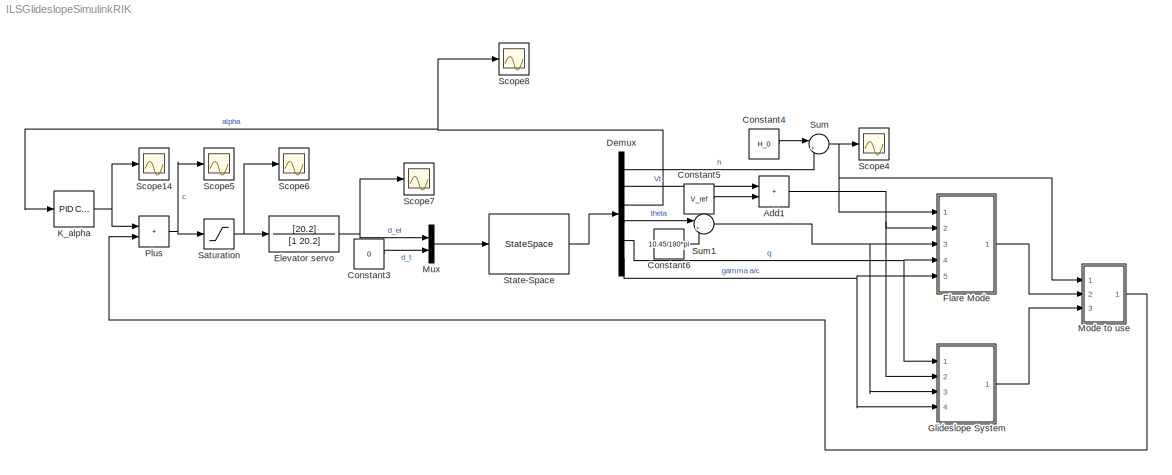
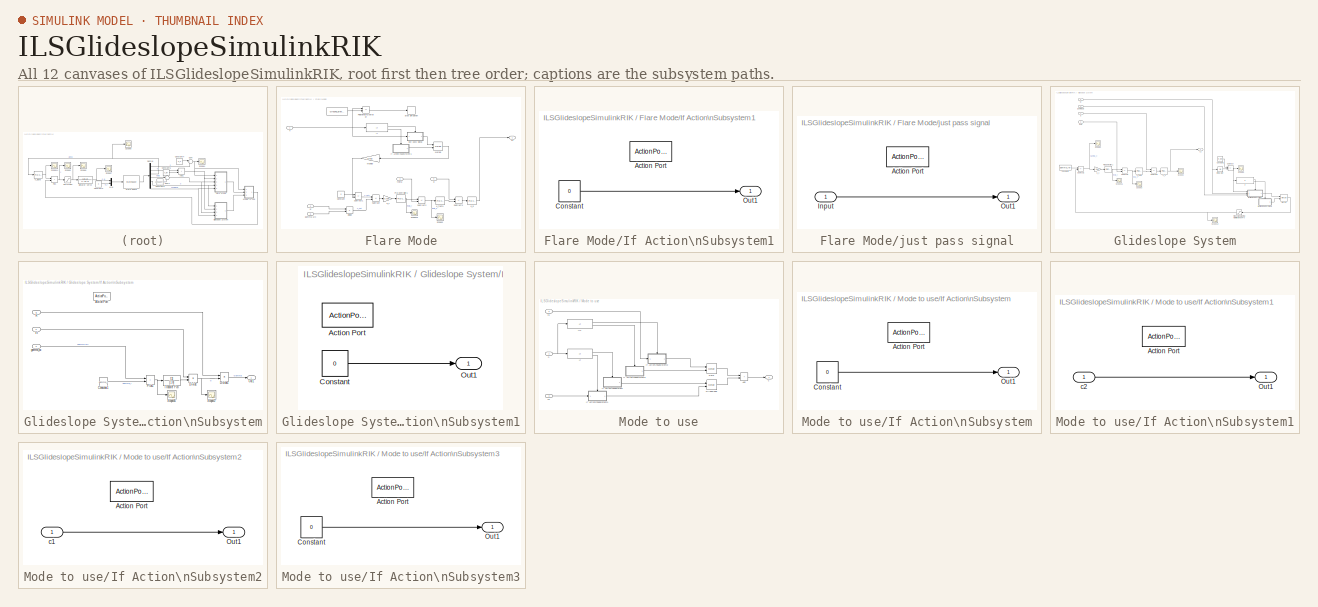
[diagram: thumbnail index - all 12 canvases of the model, root first then tree order]
MODEL ILSGlideslopeSimulinkRIK
KIND model
BLOCK [Sum] Add1
  IconShape = rectangular
  Ports = [2, 1]
  SID = 342
BLOCK [Constant] Constant3
  SID = 338
  Value = 0
BLOCK [Constant] Constant4
  SID = 340
  Value = H_0
BLOCK [Constant] Constant5
  SID = 343
  Value = V_ref
BLOCK [Constant] Constant6
  SID = 346
  Value = 10.45/180*pi
BLOCK [Demux] Demux
  Outputs = 6
  Ports = [1, 6]
  SID = 76
BLOCK [TransferFcn] Elevator servo
  Denominator = [1 20.2]
  Numerator = [20.2]
  SID = 300
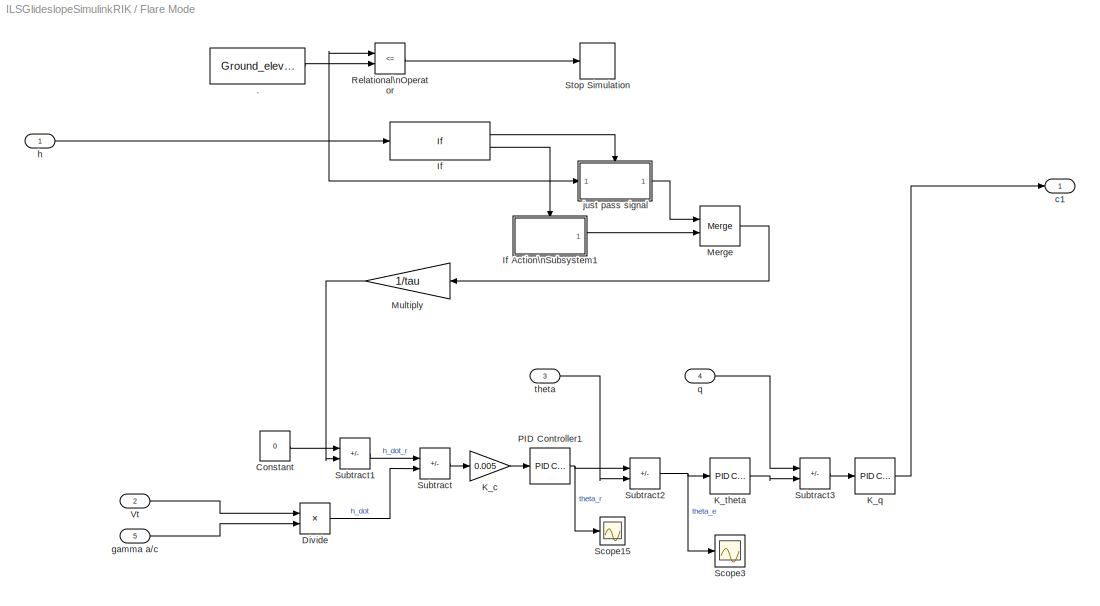
BLOCK [SubSystem] Flare Mode
  Ports = [5, 1]
  RequestExecContextInheritance = off
  SID = 431
BLOCK [Constant] Flare Mode/.
  SID = 439
  Value = Ground_elevation
BLOCK [Constant] Flare Mode/Constant
  SID = 417
  Value = 0
BLOCK [Product] Flare Mode/Divide
  Inputs = **
  Ports = [2, 1]
  SID = 418
BLOCK [If] Flare Mode/If
  IfExpression = u1 <= H_flare
  Ports = [1, 2]
  SID = 405
BLOCK [SubSystem] Flare Mode/If Action\nSubsystem1
  Ports = [0, 1, 0, 0, 0, 0, 0, 1]
  RequestExecContextInheritance = off
  SID = 410
  TreatAsAtomicUnit = on
BLOCK [ActionPort] Flare Mode/If Action\nSubsystem1/Action Port
  ActionPortLabel = else
  SID = 412
BLOCK [Constant] Flare Mode/If Action\nSubsystem1/Constant
  SID = 415
  Value = 0
BLOCK [Outport] Flare Mode/If Action\nSubsystem1/Out1
  SID = 413
BLOCK [Gain] Flare Mode/K_c
  Gain = 0.005
  SID = 419
BLOCK [Reference] Flare Mode/K_q  REF=pid_lib/PID Controller
  AWVariant = Disabled
  AntiWindupMode = none
  Controller = P
  ControllerParametersSource = internal
  D = 0
  DGainOutDataTypeStr = Inherit: Inherit via internal rule
  DOutMax = []
  DOutMin = []
  DParamDataTypeStr = Inherit: Inherit via internal rule
  DParamMax = []
  DParamMin = []
  DProdOutDataTypeStr = Inherit: Inherit via internal rule
  DVariant = Disabled
  DerivativeFilterVariant = Disabled
  DifferentiatorICPrevScaledInput = 0
  DifferentiatorOutDataTypeStr = Inherit: Inherit via internal rule
  DifferentiatorOutMax = []
  DifferentiatorOutMin = []
  DivideOutDataTypeStr = Inherit: Inherit via internal rule
  DivideOutMax = []
  DivideOutMin = []
  ExternalReset = none
  ExternalResetVariant = Disabled
  ExternalSaturationOutDataTypeStr = Inherit: Same as second input
  FdbkBlocksVariant = Forward
  FilterContinuousStateAttributes = ''
  FilterDiffDenAccumDataTypeStr = Inherit: Inherit via internal rule
  FilterDiffDenProductOutputDataTypeStr = Inherit: Inherit via internal rule
  FilterDiffNumAccumDataTypeStr = Inherit: Inherit via internal rule
  FilterDiffNumProductOutputDataTypeStr = Inherit: Inherit via internal rule
  FilterDiffOutCoefDataTypeStr = Inherit: Inherit via internal rule
  FilterDiffOutCoefMax = []
  FilterDiffOutCoefMin = []
  FilterICVariant = Disabled
  FilterMethod = Forward Euler
  FilterOutDataTypeStr = Inherit: Inherit via internal rule
  FilterOutMax = []
  FilterOutMin = []
  FilterRTWStateStorageClass = Auto
  FilterStateMustResolveToSignalObject = off
  Form = Parallel
  I = 1
  IGainOutDataTypeStr = Inherit: Inherit via internal rule
  IOutMax = []
  IOutMin = []
  IParamDataTypeStr = Inherit: Inherit via internal rule
  IParamMax = []
  IParamMin = []
  IProdOutDataTypeStr = Inherit: Inherit via internal rule
  IVariant = Disabled
  IdealPFdbkVariant = Disabled
  IdealPVariant = Disabled
  IgnoreLimit = off
  InitialConditionForFilter = 0
  InitialConditionForIntegrator = 0
  InitialConditionSetting = Auto
  InitialConditionSource = internal
  IntegratorContinuousStateAttributes = ''
  IntegratorICVariant = Disabled
  IntegratorMethod = Forward Euler
  IntegratorOutDataTypeStr = Inherit: Inherit via internal rule
  IntegratorOutMax = []
  IntegratorOutMin = []
  IntegratorRTWStateStorageClass = Auto
  IntegratorStateMustResolveToSignalObject = off
  IntegratorVariant = Disabled
  Kb = 1
  KbOutDataTypeStr = Inherit: Inherit via internal rule
  KbOutMax = []
  KbOutMin = []
  KbParamDataTypeStr = Inherit: Inherit via internal rule
  KbParamMax = []
  KbParamMin = []
  Kt = 1
  KtOutDataTypeStr = Inherit: Inherit via internal rule
  KtOutMax = []
  KtOutMin = []
  KtParamDataTypeStr = Inherit: Inherit via internal rule
  KtParamMax = []
  KtParamMin = []
  LimitOutput = off
  LinearizeAsGain = on
  LockScale = off
  LowerSaturationLimit = -inf
  N = 100
  NCopyVariant = Disabled_SignalSpec
  NGainOutDataTypeStr = Inherit: Inherit via internal rule
  NOutMax = []
  NOutMin = []
  NParamDataTypeStr = Inherit: Inherit via internal rule
  NParamMax = []
  NParamMin = []
  NProdOutDataTypeStr = Inherit: Inherit via internal rule
  NTsProdOutDataTypeStr = Inherit: Inherit via internal rule
  NTsProdOutMax = []
  NTsProdOutMin = []
  NVariant = Disabled
  P = 0.7
  PCopyVariant = Disabled
  PGainOutDataTypeStr = Inherit: Inherit via internal rule
  POutMax = []
  POutMin = []
  PParamDataTypeStr = Inherit: Inherit via internal rule
  PParamMax = []
  PParamMin = []
  PProdOutDataTypeStr = Inherit: Inherit via internal rule
  ParallelPVariant = InternalParameters
  Ports = [1, 1]
  RTWMemSecDataConstants = Inherit from model
  RTWMemSecDataInternal = Inherit from model
  RTWMemSecDataParameters = Inherit from model
  RTWMemSecFuncExecute = Inherit from model
  RTWMemSecFuncInitTerm = Inherit from model
  ReciprocalOutDataTypeStr = Inherit: Inherit via internal rule
  ReciprocalOutMax = []
  ReciprocalOutMin = []
  RndMeth = Floor
  SID = 420
  SampleTime = -1
  SatFdbkVariant = Disabled
  SatLimitsSource = internal
  SatVariant = Disabled
  SaturateOnIntegerOverflow = off
  SaturationOutDataTypeStr = Inherit: Same as input
  SaturationOutMax = []
  SaturationOutMin = []
  SourceBlock = pid_lib/PID Controller
  SourceProductBaseCode = SL
  SourceType = PID 1dof
  SumAccumDataTypeStr = Inherit: Inherit via internal rule
  SumDAccumDataTypeStr = Inherit: Inherit via internal rule
  SumDOutDataTypeStr = Inherit: Inherit via internal rule
  SumDOutMax = []
  SumDOutMin = []
  SumDenAccumDataTypeStr = Inherit: Inherit via internal rule
  SumDenOutDataTypeStr = Inherit: Inherit via internal rule
  SumDenOutMax = []
  SumDenOutMin = []
  SumFdbkVariant = Disabled
  SumI1AccumDataTypeStr = Inherit: Inherit via internal rule
  SumI1OutDataTypeStr = Inherit: Inherit via internal rule
  SumI1OutMax = []
  SumI1OutMin = []
  SumI2AccumDataTypeStr = Inherit: Inherit via internal rule
  SumI2OutDataTypeStr = Inherit: Inherit via internal rule
  SumI2OutMax = []
  SumI2OutMin = []
  SumI3AccumDataTypeStr = Inherit: Inherit via internal rule
  SumI3OutDataTypeStr = Inherit: Inherit via internal rule
  SumI3OutMax = []
  SumI3OutMin = []
  SumI4AccumDataTypeStr = Inherit: Inherit via internal rule
  SumI4OutDataTypeStr = Inherit: Inherit via internal rule
  SumI4OutMax = []
  SumI4OutMin = []
  SumNumAccumDataTypeStr = Inherit: Inherit via internal rule
  SumNumOutDataTypeStr = Inherit: Inherit via internal rule
  SumNumOutMax = []
  SumNumOutMin = []
  SumOutDataTypeStr = Inherit: Inherit via internal rule
  SumOutMax = []
  SumOutMin = []
  SumVariant = Passthrough_P
  TRSumVariant = Passthrough
  TRVariant = Disabled
  TimeDomain = Continuous-time
  TrackingMode = off
  TsampFilterVariant = InternalTs
  TsampIntegralVariant = Disabled_SignalSpec
  TsampNgainVariant = Passthrough
  TunerSelectOption = Transfer Function Based (PID Tuner App)
  UdiffTsProdOutDataTypeStr = Inherit: Inherit via internal rule
  UdiffTsProdOutMax = []
  UdiffTsProdOutMin = []
  UintegralTsProdOutDataTypeStr = Inherit: Inherit via internal rule
  UintegralTsProdOutMax = []
  UintegralTsProdOutMin = []
  UngainTsProdOutDataTypeStr = Inherit: Inherit via internal rule
  UngainTsProdOutMax = []
  UngainTsProdOutMin = []
  UpperSaturationLimit = inf
  UseExternalTs = off
  UseFilter = on
  ZeroCross = on
BLOCK [Reference] Flare Mode/K_theta  REF=pid_lib/PID Controller
  AWVariant = Disabled
  AntiWindupMode = none
  Controller = P
  ControllerParametersSource = internal
  D = 903.701444635621
  DGainOutDataTypeStr = Inherit: Inherit via internal rule
  DOutMax = []
  DOutMin = []
  DParamDataTypeStr = Inherit: Inherit via internal rule
  DParamMax = []
  DParamMin = []
  DProdOutDataTypeStr = Inherit: Inherit via internal rule
  DVariant = Disabled
  DerivativeFilterVariant = Disabled
  DifferentiatorICPrevScaledInput = 0
  DifferentiatorOutDataTypeStr = Inherit: Inherit via internal rule
  DifferentiatorOutMax = []
  DifferentiatorOutMin = []
  DivideOutDataTypeStr = Inherit: Inherit via internal rule
  DivideOutMax = []
  DivideOutMin = []
  ExternalReset = none
  ExternalResetVariant = Disabled
  ExternalSaturationOutDataTypeStr = Inherit: Same as second input
  FdbkBlocksVariant = Forward
  FilterContinuousStateAttributes = ''
  FilterDiffDenAccumDataTypeStr = Inherit: Inherit via internal rule
  FilterDiffDenProductOutputDataTypeStr = Inherit: Inherit via internal rule
  FilterDiffNumAccumDataTypeStr = Inherit: Inherit via internal rule
  FilterDiffNumProductOutputDataTypeStr = Inherit: Inherit via internal rule
  FilterDiffOutCoefDataTypeStr = Inherit: Inherit via internal rule
  FilterDiffOutCoefMax = []
  FilterDiffOutCoefMin = []
  FilterICVariant = Disabled
  FilterMethod = Forward Euler
  FilterOutDataTypeStr = Inherit: Inherit via internal rule
  FilterOutMax = []
  FilterOutMin = []
  FilterRTWStateStorageClass = Auto
  FilterStateMustResolveToSignalObject = off
  Form = Parallel
  I = 3.08886636709331e-07
  IGainOutDataTypeStr = Inherit: Inherit via internal rule
  IOutMax = []
  IOutMin = []
  IParamDataTypeStr = Inherit: Inherit via internal rule
  IParamMax = []
  IParamMin = []
  IProdOutDataTypeStr = Inherit: Inherit via internal rule
  IVariant = Disabled
  IdealPFdbkVariant = Disabled
  IdealPVariant = Disabled
  IgnoreLimit = off
  InitialConditionForFilter = 0
  InitialConditionForIntegrator = 0
  InitialConditionSetting = Auto
  InitialConditionSource = internal
  IntegratorContinuousStateAttributes = ''
  IntegratorICVariant = Disabled
  IntegratorMethod = Forward Euler
  IntegratorOutDataTypeStr = Inherit: Inherit via internal rule
  IntegratorOutMax = []
  IntegratorOutMin = []
  IntegratorRTWStateStorageClass = Auto
  IntegratorStateMustResolveToSignalObject = off
  IntegratorVariant = Disabled
  Kb = 1
  KbOutDataTypeStr = Inherit: Inherit via internal rule
  KbOutMax = []
  KbOutMin = []
  KbParamDataTypeStr = Inherit: Inherit via internal rule
  KbParamMax = []
  KbParamMin = []
  Kt = 1
  KtOutDataTypeStr = Inherit: Inherit via internal rule
  KtOutMax = []
  KtOutMin = []
  KtParamDataTypeStr = Inherit: Inherit via internal rule
  KtParamMax = []
  KtParamMin = []
  LimitOutput = off
  LinearizeAsGain = on
  LockScale = off
  LowerSaturationLimit = -inf
  N = 0.00268724844396213
  NCopyVariant = Disabled_SignalSpec
  NGainOutDataTypeStr = Inherit: Inherit via internal rule
  NOutMax = []
  NOutMin = []
  NParamDataTypeStr = Inherit: Inherit via internal rule
  NParamMax = []
  NParamMin = []
  NProdOutDataTypeStr = Inherit: Inherit via internal rule
  NTsProdOutDataTypeStr = Inherit: Inherit via internal rule
  NTsProdOutMax = []
  NTsProdOutMin = []
  NVariant = Disabled
  P = -0.53
  PCopyVariant = Disabled
  PGainOutDataTypeStr = Inherit: Inherit via internal rule
  POutMax = []
  POutMin = []
  PParamDataTypeStr = Inherit: Inherit via internal rule
  PParamMax = []
  PParamMin = []
  PProdOutDataTypeStr = Inherit: Inherit via internal rule
  ParallelPVariant = InternalParameters
  Ports = [1, 1]
  RTWMemSecDataConstants = Inherit from model
  RTWMemSecDataInternal = Inherit from model
  RTWMemSecDataParameters = Inherit from model
  RTWMemSecFuncExecute = Inherit from model
  RTWMemSecFuncInitTerm = Inherit from model
  ReciprocalOutDataTypeStr = Inherit: Inherit via internal rule
  ReciprocalOutMax = []
  ReciprocalOutMin = []
  RndMeth = Floor
  SID = 421
  SampleTime = -1
  SatFdbkVariant = Disabled
  SatLimitsSource = internal
  SatVariant = Disabled
  SaturateOnIntegerOverflow = off
  SaturationOutDataTypeStr = Inherit: Same as input
  SaturationOutMax = []
  SaturationOutMin = []
  SourceBlock = pid_lib/PID Controller
  SourceProductBaseCode = SL
  SourceType = PID 1dof
  SumAccumDataTypeStr = Inherit: Inherit via internal rule
  SumDAccumDataTypeStr = Inherit: Inherit via internal rule
  SumDOutDataTypeStr = Inherit: Inherit via internal rule
  SumDOutMax = []
  SumDOutMin = []
  SumDenAccumDataTypeStr = Inherit: Inherit via internal rule
  SumDenOutDataTypeStr = Inherit: Inherit via internal rule
  SumDenOutMax = []
  SumDenOutMin = []
  SumFdbkVariant = Disabled
  SumI1AccumDataTypeStr = Inherit: Inherit via internal rule
  SumI1OutDataTypeStr = Inherit: Inherit via internal rule
  SumI1OutMax = []
  SumI1OutMin = []
  SumI2AccumDataTypeStr = Inherit: Inherit via internal rule
  SumI2OutDataTypeStr = Inherit: Inherit via internal rule
  SumI2OutMax = []
  SumI2OutMin = []
  SumI3AccumDataTypeStr = Inherit: Inherit via internal rule
  SumI3OutDataTypeStr = Inherit: Inherit via internal rule
  SumI3OutMax = []
  SumI3OutMin = []
  SumI4AccumDataTypeStr = Inherit: Inherit via internal rule
  SumI4OutDataTypeStr = Inherit: Inherit via internal rule
  SumI4OutMax = []
  SumI4OutMin = []
  SumNumAccumDataTypeStr = Inherit: Inherit via internal rule
  SumNumOutDataTypeStr = Inherit: Inherit via internal rule
  SumNumOutMax = []
  SumNumOutMin = []
  SumOutDataTypeStr = Inherit: Inherit via internal rule
  SumOutMax = []
  SumOutMin = []
  SumVariant = Passthrough_P
  TRSumVariant = Passthrough
  TRVariant = Disabled
  TimeDomain = Continuous-time
  TrackingMode = off
  TsampFilterVariant = InternalTs
  TsampIntegralVariant = Disabled_SignalSpec
  TsampNgainVariant = Passthrough
  TunerSelectOption = Transfer Function Based (PID Tuner App)
  UdiffTsProdOutDataTypeStr = Inherit: Inherit via internal rule
  UdiffTsProdOutMax = []
  UdiffTsProdOutMin = []
  UintegralTsProdOutDataTypeStr = Inherit: Inherit via internal rule
  UintegralTsProdOutMax = []
  UintegralTsProdOutMin = []
  UngainTsProdOutDataTypeStr = Inherit: Inherit via internal rule
  UngainTsProdOutMax = []
  UngainTsProdOutMin = []
  UpperSaturationLimit = inf
  UseExternalTs = off
  UseFilter = on
  ZeroCross = on
BLOCK [Merge] Flare Mode/Merge
  Ports = [2, 1]
  SID = 416
BLOCK [Gain] Flare Mode/Multiply
  Gain = 1/tau
  SID = 430
BLOCK [Reference] Flare Mode/PID Controller1  REF=pid_lib/PID Controller
  AWVariant = Passthrough
  AntiWindupMode = none
  Controller = PI
  ControllerParametersSource = internal
  D = 1
  DGainOutDataTypeStr = Inherit: Inherit via internal rule
  DOutMax = []
  DOutMin = []
  DParamDataTypeStr = Inherit: Inherit via internal rule
  DParamMax = []
  DParamMin = []
  DProdOutDataTypeStr = Inherit: Inherit via internal rule
  DVariant = Disabled
  DerivativeFilterVariant = Disabled
  DifferentiatorICPrevScaledInput = 0
  DifferentiatorOutDataTypeStr = Inherit: Inherit via internal rule
  DifferentiatorOutMax = []
  DifferentiatorOutMin = []
  DivideOutDataTypeStr = Inherit: Inherit via internal rule
  DivideOutMax = []
  DivideOutMin = []
  ExternalReset = none
  ExternalResetVariant = Disabled
  ExternalSaturationOutDataTypeStr = Inherit: Same as second input
  FdbkBlocksVariant = Forward
  FilterContinuousStateAttributes = ''
  FilterDiffDenAccumDataTypeStr = Inherit: Inherit via internal rule
  FilterDiffDenProductOutputDataTypeStr = Inherit: Inherit via internal rule
  FilterDiffNumAccumDataTypeStr = Inherit: Inherit via internal rule
  FilterDiffNumProductOutputDataTypeStr = Inherit: Inherit via internal rule
  FilterDiffOutCoefDataTypeStr = Inherit: Inherit via internal rule
  FilterDiffOutCoefMax = []
  FilterDiffOutCoefMin = []
  FilterICVariant = Disabled
  FilterMethod = Forward Euler
  FilterOutDataTypeStr = Inherit: Inherit via internal rule
  FilterOutMax = []
  FilterOutMin = []
  FilterRTWStateStorageClass = Auto
  FilterStateMustResolveToSignalObject = off
  Form = Parallel
  I = w_1
  IGainOutDataTypeStr = Inherit: Inherit via internal rule
  IOutMax = []
  IOutMin = []
  IParamDataTypeStr = Inherit: Inherit via internal rule
  IParamMax = []
  IParamMin = []
  IProdOutDataTypeStr = Inherit: Inherit via internal rule
  IVariant = InternalParameters
  IdealPFdbkVariant = Disabled
  IdealPVariant = Disabled
  IgnoreLimit = off
  InitialConditionForFilter = 0
  InitialConditionForIntegrator = 0
  InitialConditionSetting = Auto
  InitialConditionSource = internal
  IntegratorContinuousStateAttributes = ''
  IntegratorICVariant = InternalICs
  IntegratorMethod = Forward Euler
  IntegratorOutDataTypeStr = Inherit: Inherit via internal rule
  IntegratorOutMax = []
  IntegratorOutMin = []
  IntegratorRTWStateStorageClass = Auto
  IntegratorStateMustResolveToSignalObject = off
  IntegratorVariant = Continuous
  Kb = 1
  KbOutDataTypeStr = Inherit: Inherit via internal rule
  KbOutMax = []
  KbOutMin = []
  KbParamDataTypeStr = Inherit: Inherit via internal rule
  KbParamMax = []
  KbParamMin = []
  Kt = 1
  KtOutDataTypeStr = Inherit: Inherit via internal rule
  KtOutMax = []
  KtOutMin = []
  KtParamDataTypeStr = Inherit: Inherit via internal rule
  KtParamMax = []
  KtParamMin = []
  LimitOutput = off
  LinearizeAsGain = on
  LockScale = off
  LowerSaturationLimit = -inf
  N = 100
  NCopyVariant = Disabled_SignalSpec
  NGainOutDataTypeStr = Inherit: Inherit via internal rule
  NOutMax = []
  NOutMin = []
  NParamDataTypeStr = Inherit: Inherit via internal rule
  NParamMax = []
  NParamMin = []
  NProdOutDataTypeStr = Inherit: Inherit via internal rule
  NTsProdOutDataTypeStr = Inherit: Inherit via internal rule
  NTsProdOutMax = []
  NTsProdOutMin = []
  NVariant = Disabled
  P = 1
  PCopyVariant = Disabled
  PGainOutDataTypeStr = Inherit: Inherit via internal rule
  POutMax = []
  POutMin = []
  PParamDataTypeStr = Inherit: Inherit via internal rule
  PParamMax = []
  PParamMin = []
  PProdOutDataTypeStr = Inherit: Inherit via internal rule
  ParallelPVariant = InternalParameters
  Ports = [1, 1]
  RTWMemSecDataConstants = Inherit from model
  RTWMemSecDataInternal = Inherit from model
  RTWMemSecDataParameters = Inherit from model
  RTWMemSecFuncExecute = Inherit from model
  RTWMemSecFuncInitTerm = Inherit from model
  ReciprocalOutDataTypeStr = Inherit: Inherit via internal rule
  ReciprocalOutMax = []
  ReciprocalOutMin = []
  RndMeth = Floor
  SID = 422
  SampleTime = -1
  SatFdbkVariant = Disabled
  SatLimitsSource = internal
  SatVariant = Disabled
  SaturateOnIntegerOverflow = off
  SaturationOutDataTypeStr = Inherit: Same as input
  SaturationOutMax = []
  SaturationOutMin = []
  SourceBlock = pid_lib/PID Controller
  SourceProductBaseCode = SL
  SourceType = PID 1dof
  SumAccumDataTypeStr = Inherit: Inherit via internal rule
  SumDAccumDataTypeStr = Inherit: Inherit via internal rule
  SumDOutDataTypeStr = Inherit: Inherit via internal rule
  SumDOutMax = []
  SumDOutMin = []
  SumDenAccumDataTypeStr = Inherit: Inherit via internal rule
  SumDenOutDataTypeStr = Inherit: Inherit via internal rule
  SumDenOutMax = []
  SumDenOutMin = []
  SumFdbkVariant = Disabled
  SumI1AccumDataTypeStr = Inherit: Inherit via internal rule
  SumI1OutDataTypeStr = Inherit: Inherit via internal rule
  SumI1OutMax = []
  SumI1OutMin = []
  SumI2AccumDataTypeStr = Inherit: Inherit via internal rule
  SumI2OutDataTypeStr = Inherit: Inherit via internal rule
  SumI2OutMax = []
  SumI2OutMin = []
  SumI3AccumDataTypeStr = Inherit: Inherit via internal rule
  SumI3OutDataTypeStr = Inherit: Inherit via internal rule
  SumI3OutMax = []
  SumI3OutMin = []
  SumI4AccumDataTypeStr = Inherit: Inherit via internal rule
  SumI4OutDataTypeStr = Inherit: Inherit via internal rule
  SumI4OutMax = []
  SumI4OutMin = []
  SumNumAccumDataTypeStr = Inherit: Inherit via internal rule
  SumNumOutDataTypeStr = Inherit: Inherit via internal rule
  SumNumOutMax = []
  SumNumOutMin = []
  SumOutDataTypeStr = Inherit: Inherit via internal rule
  SumOutMax = []
  SumOutMin = []
  SumVariant = Sum_PI
  TRSumVariant = Passthrough
  TRVariant = Disabled
  TimeDomain = Continuous-time
  TrackingMode = off
  TsampFilterVariant = InternalTs
  TsampIntegralVariant = Passthrough
  TsampNgainVariant = Passthrough
  TunerSelectOption = Transfer Function Based (PID Tuner App)
  UdiffTsProdOutDataTypeStr = Inherit: Inherit via internal rule
  UdiffTsProdOutMax = []
  UdiffTsProdOutMin = []
  UintegralTsProdOutDataTypeStr = Inherit: Inherit via internal rule
  UintegralTsProdOutMax = []
  UintegralTsProdOutMin = []
  UngainTsProdOutDataTypeStr = Inherit: Inherit via internal rule
  UngainTsProdOutMax = []
  UngainTsProdOutMin = []
  UpperSaturationLimit = inf
  UseExternalTs = off
  UseFilter = on
  ZeroCross = on
BLOCK [RelationalOperator] Flare Mode/Relational\nOperator
  InputSameDT = off
  Operator = <=
  OutDataTypeStr = boolean
  Ports = [2, 1]
  RndMeth = Simplest
  SID = 440
BLOCK [Scope] Flare Mode/Scope15
  Floating = off
  NumInputPorts = 1
  Ports = [1]
  SID = 423
  ScopeSpecificationString = Simulink.scopes.TimeScopeBlockCfg('CurrentConfiguration', extmgr.ConfigurationSet(extmgr.Configuration('Core','General UI',true),extmgr.Configuration('Core','Source UI',true),extmgr.Configuration('Sources','WiredSimulink',true,'DataLoggingVariableName','ScopeData1'),extmgr.Configuration('Visuals','Time Domain',true,'SerializedDisplays',{struct('MinYLimReal','-0.10228','MaxYLimReal','0.85007','YLab...<+1366ch>
BLOCK [Scope] Flare Mode/Scope3
  Floating = off
  NumInputPorts = 1
  Ports = [1]
  SID = 425
  ScopeSpecificationString = Simulink.scopes.TimeScopeBlockCfg('CurrentConfiguration', extmgr.ConfigurationSet(extmgr.Configuration('Core','General UI',true),extmgr.Configuration('Core','Source UI',true),extmgr.Configuration('Sources','WiredSimulink',true,'DataLoggingVariableName','ScopeData3'),extmgr.Configuration('Visuals','Time Domain',true,'SerializedDisplays',{struct('MinYLimReal','-12545529112428.87305','MaxYLimReal','7...<+1501ch>
BLOCK [Stop] Flare Mode/Stop Simulation
  SID = 441
BLOCK [Sum] Flare Mode/Subtract
  IconShape = rectangular
  Inputs = +-
  Ports = [2, 1]
  SID = 426
BLOCK [Sum] Flare Mode/Subtract1
  IconShape = rectangular
  Inputs = +-
  Ports = [2, 1]
  SID = 427
BLOCK [Sum] Flare Mode/Subtract2
  IconShape = rectangular
  Inputs = +-
  Ports = [2, 1]
  SID = 428
BLOCK [Sum] Flare Mode/Subtract3
  IconShape = rectangular
  Inputs = -+
  Ports = [2, 1]
  SID = 429
BLOCK [Inport] Flare Mode/Vt
  Port = 2
  SID = 433
BLOCK [Outport] Flare Mode/c1
  SID = 442
BLOCK [Inport] Flare Mode/gamma a//c
  Port = 5
  SID = 436
BLOCK [Inport] Flare Mode/h
  SID = 432
BLOCK [SubSystem] Flare Mode/just pass signal
  Ports = [1, 1, 0, 0, 0, 0, 0, 1]
  RequestExecContextInheritance = off
  SID = 406
  TreatAsAtomicUnit = on
BLOCK [ActionPort] Flare Mode/just pass signal/Action Port
  ActionPortLabel = if(u1 <= H_flare)
  SID = 408
BLOCK [Inport] Flare Mode/just pass signal/Input
  SID = 414
BLOCK [Outport] Flare Mode/just pass signal/Out1
  SID = 409
BLOCK [Inport] Flare Mode/q
  Port = 4
  SID = 435
BLOCK [Inport] Flare Mode/theta
  Port = 3
  SID = 434
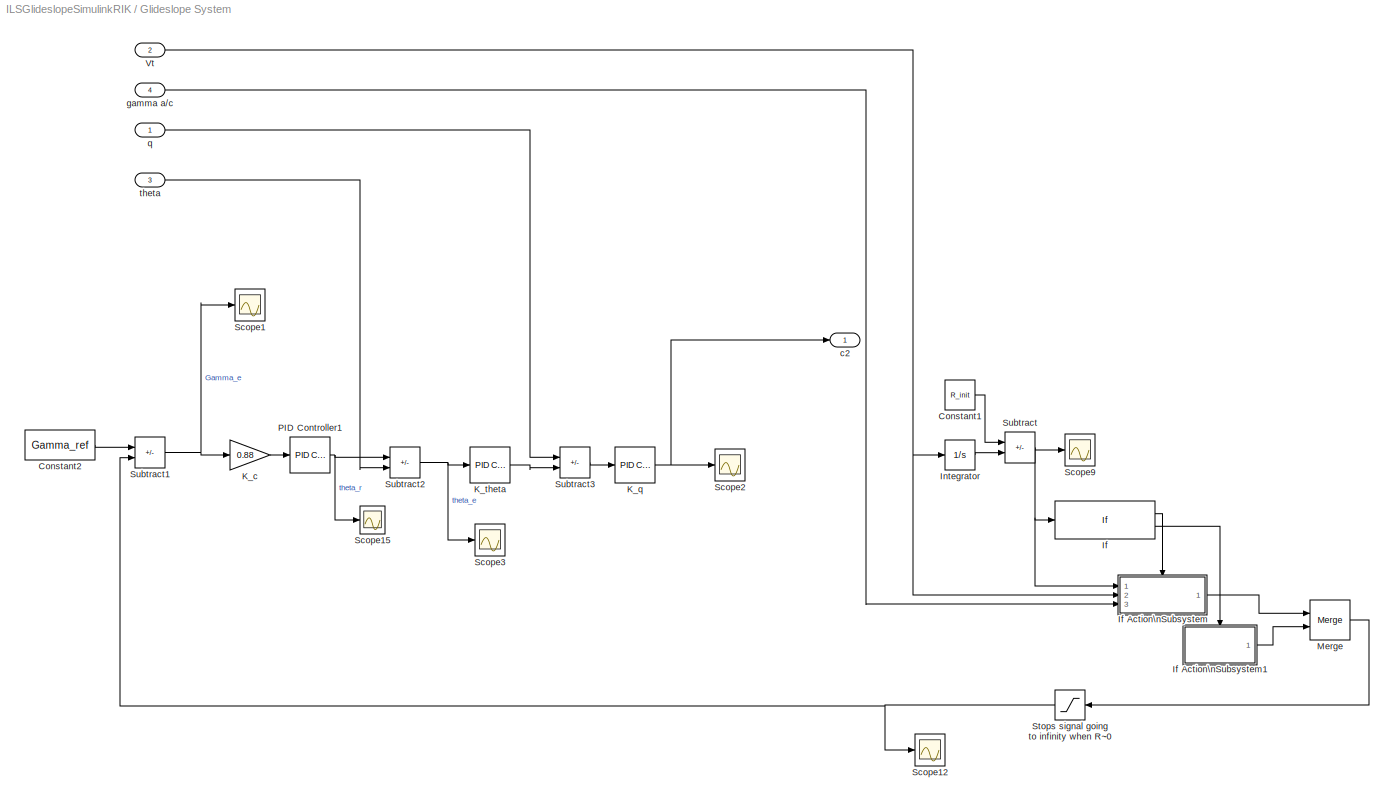
BLOCK [SubSystem] Glideslope System
  Ports = [4, 1]
  RequestExecContextInheritance = off
  SID = 399
BLOCK [Constant] Glideslope System/Constant1
  SID = 322
  Value = R_init
BLOCK [Constant] Glideslope System/Constant2
  SID = 324
  Value = Gamma_ref
BLOCK [If] Glideslope System/If
  IfExpression = u1 <= 38215
  Ports = [1, 2]
  SID = 372
BLOCK [SubSystem] Glideslope System/If Action\nSubsystem
  Ports = [3, 1, 0, 0, 0, 0, 0, 1]
  RequestExecContextInheritance = off
  SID = 373
  TreatAsAtomicUnit = on
BLOCK [ActionPort] Glideslope System/If Action\nSubsystem/Action Port
  ActionPortLabel = if(u1 <= 38215)
  SID = 375
BLOCK [Constant] Glideslope System/If Action\nSubsystem/Constant1
  SID = 386
  Value = gamma_r
BLOCK [Product] Glideslope System/If Action\nSubsystem/Divide
  Inputs = **
  Ports = [2, 1]
  SID = 387
BLOCK [Product] Glideslope System/If Action\nSubsystem/Divide1
  Inputs = /*
  Ports = [2, 1]
  SID = 388
BLOCK [Outport] Glideslope System/If Action\nSubsystem/Out1
  SID = 394
BLOCK [Sum] Glideslope System/If Action\nSubsystem/Plus1
  IconShape = rectangular
  Ports = [2, 1]
  SID = 389
BLOCK [Inport] Glideslope System/If Action\nSubsystem/R
  SID = 374
BLOCK [Scope] Glideslope System/If Action\nSubsystem/Scope16
  Floating = off
  NumInputPorts = 1
  Ports = [1]
  SID = 390
  ScopeSpecificationString = Simulink.scopes.TimeScopeBlockCfg('CurrentConfiguration', extmgr.ConfigurationSet(extmgr.Configuration('Core','General UI',true),extmgr.Configuration('Core','Source UI',true),extmgr.Configuration('Sources','WiredSimulink',true,'DataLoggingVariableName','ScopeData1'),extmgr.Configuration('Visuals','Time Domain',true,'SerializedDisplays',{struct('MinYLimReal','0.00671','MaxYLimReal','0.07098','YLabe...<+1362ch>
BLOCK [Scope] Glideslope System/If Action\nSubsystem/Scope17
  Floating = off
  NumInputPorts = 1
  Ports = [1]
  SID = 391
  ScopeSpecificationString = Simulink.scopes.TimeScopeBlockCfg('CurrentConfiguration', extmgr.ConfigurationSet(extmgr.Configuration('Core','General UI',true),extmgr.Configuration('Core','Source UI',true),extmgr.Configuration('Sources','WiredSimulink',true,'DataLoggingVariableName','ScopeData2'),extmgr.Configuration('Visuals','Time Domain',true,'SerializedDisplays',{struct('MinYLimReal','-1942.16536','MaxYLimReal','17479.48822...<+1432ch>
BLOCK [TransferFcn] Glideslope System/If Action\nSubsystem/Transfer Fcn
  Denominator = [1 0]
  SID = 392
BLOCK [Inport] Glideslope System/If Action\nSubsystem/Vt
  Port = 2
  SID = 385
BLOCK [Inport] Glideslope System/If Action\nSubsystem/gamma_ac
  Port = 3
  SID = 393
BLOCK [SubSystem] Glideslope System/If Action\nSubsystem1
  Ports = [0, 1, 0, 0, 0, 0, 0, 1]
  RequestExecContextInheritance = off
  SID = 379
  TreatAsAtomicUnit = on
BLOCK [ActionPort] Glideslope System/If Action\nSubsystem1/Action Port
  ActionPortLabel = else
  SID = 381
BLOCK [Constant] Glideslope System/If Action\nSubsystem1/Constant
  SID = 395
  Value = 0
BLOCK [Outport] Glideslope System/If Action\nSubsystem1/Out1
  SID = 383
BLOCK [Integrator] Glideslope System/Integrator
  Ports = [1, 1]
  SID = 320
BLOCK [Gain] Glideslope System/K_c
  Gain = 0.88
  SID = 370
BLOCK [Reference] Glideslope System/K_q  REF=pid_lib/PID Controller
  AWVariant = Disabled
  AntiWindupMode = none
  Controller = P
  ControllerParametersSource = internal
  D = -50
  DGainOutDataTypeStr = Inherit: Inherit via internal rule
  DOutMax = []
  DOutMin = []
  DParamDataTypeStr = Inherit: Inherit via internal rule
  DParamMax = []
  DParamMin = []
  DProdOutDataTypeStr = Inherit: Inherit via internal rule
  DVariant = Disabled
  DerivativeFilterVariant = Disabled
  DifferentiatorICPrevScaledInput = 0
  DifferentiatorOutDataTypeStr = Inherit: Inherit via internal rule
  DifferentiatorOutMax = []
  DifferentiatorOutMin = []
  DivideOutDataTypeStr = Inherit: Inherit via internal rule
  DivideOutMax = []
  DivideOutMin = []
  ExternalReset = none
  ExternalResetVariant = Disabled
  ExternalSaturationOutDataTypeStr = Inherit: Same as second input
  FdbkBlocksVariant = Forward
  FilterContinuousStateAttributes = ''
  FilterDiffDenAccumDataTypeStr = Inherit: Inherit via internal rule
  FilterDiffDenProductOutputDataTypeStr = Inherit: Inherit via internal rule
  FilterDiffNumAccumDataTypeStr = Inherit: Inherit via internal rule
  FilterDiffNumProductOutputDataTypeStr = Inherit: Inherit via internal rule
  FilterDiffOutCoefDataTypeStr = Inherit: Inherit via internal rule
  FilterDiffOutCoefMax = []
  FilterDiffOutCoefMin = []
  FilterICVariant = Disabled
  FilterMethod = Forward Euler
  FilterOutDataTypeStr = Inherit: Inherit via internal rule
  FilterOutMax = []
  FilterOutMin = []
  FilterRTWStateStorageClass = Auto
  FilterStateMustResolveToSignalObject = off
  Form = Parallel
  I = 0
  IGainOutDataTypeStr = Inherit: Inherit via internal rule
  IOutMax = []
  IOutMin = []
  IParamDataTypeStr = Inherit: Inherit via internal rule
  IParamMax = []
  IParamMin = []
  IProdOutDataTypeStr = Inherit: Inherit via internal rule
  IVariant = Disabled
  IdealPFdbkVariant = Disabled
  IdealPVariant = Disabled
  IgnoreLimit = off
  InitialConditionForFilter = 0
  InitialConditionForIntegrator = 0
  InitialConditionSetting = Auto
  InitialConditionSource = internal
  IntegratorContinuousStateAttributes = ''
  IntegratorICVariant = Disabled
  IntegratorMethod = Forward Euler
  IntegratorOutDataTypeStr = Inherit: Inherit via internal rule
  IntegratorOutMax = []
  IntegratorOutMin = []
  IntegratorRTWStateStorageClass = Auto
  IntegratorStateMustResolveToSignalObject = off
  IntegratorVariant = Disabled
  Kb = 1
  KbOutDataTypeStr = Inherit: Inherit via internal rule
  KbOutMax = []
  KbOutMin = []
  KbParamDataTypeStr = Inherit: Inherit via internal rule
  KbParamMax = []
  KbParamMin = []
  Kt = 1
  KtOutDataTypeStr = Inherit: Inherit via internal rule
  KtOutMax = []
  KtOutMin = []
  KtParamDataTypeStr = Inherit: Inherit via internal rule
  KtParamMax = []
  KtParamMin = []
  LimitOutput = off
  LinearizeAsGain = on
  LockScale = off
  LowerSaturationLimit = -inf
  N = 1
  NCopyVariant = Disabled_SignalSpec
  NGainOutDataTypeStr = Inherit: Inherit via internal rule
  NOutMax = []
  NOutMin = []
  NParamDataTypeStr = Inherit: Inherit via internal rule
  NParamMax = []
  NParamMin = []
  NProdOutDataTypeStr = Inherit: Inherit via internal rule
  NTsProdOutDataTypeStr = Inherit: Inherit via internal rule
  NTsProdOutMax = []
  NTsProdOutMin = []
  NVariant = Disabled
  P = 0.7
  PCopyVariant = Disabled
  PGainOutDataTypeStr = Inherit: Inherit via internal rule
  POutMax = []
  POutMin = []
  PParamDataTypeStr = Inherit: Inherit via internal rule
  PParamMax = []
  PParamMin = []
  PProdOutDataTypeStr = Inherit: Inherit via internal rule
  ParallelPVariant = InternalParameters
  Ports = [1, 1]
  RTWMemSecDataConstants = Inherit from model
  RTWMemSecDataInternal = Inherit from model
  RTWMemSecDataParameters = Inherit from model
  RTWMemSecFuncExecute = Inherit from model
  RTWMemSecFuncInitTerm = Inherit from model
  ReciprocalOutDataTypeStr = Inherit: Inherit via internal rule
  ReciprocalOutMax = []
  ReciprocalOutMin = []
  RndMeth = Floor
  SID = 358
  SampleTime = -1
  SatFdbkVariant = Disabled
  SatLimitsSource = internal
  SatVariant = Disabled
  SaturateOnIntegerOverflow = off
  SaturationOutDataTypeStr = Inherit: Same as input
  SaturationOutMax = []
  SaturationOutMin = []
  SourceBlock = pid_lib/PID Controller
  SourceProductBaseCode = SL
  SourceType = PID 1dof
  SumAccumDataTypeStr = Inherit: Inherit via internal rule
  SumDAccumDataTypeStr = Inherit: Inherit via internal rule
  SumDOutDataTypeStr = Inherit: Inherit via internal rule
  SumDOutMax = []
  SumDOutMin = []
  SumDenAccumDataTypeStr = Inherit: Inherit via internal rule
  SumDenOutDataTypeStr = Inherit: Inherit via internal rule
  SumDenOutMax = []
  SumDenOutMin = []
  SumFdbkVariant = Disabled
  SumI1AccumDataTypeStr = Inherit: Inherit via internal rule
  SumI1OutDataTypeStr = Inherit: Inherit via internal rule
  SumI1OutMax = []
  SumI1OutMin = []
  SumI2AccumDataTypeStr = Inherit: Inherit via internal rule
  SumI2OutDataTypeStr = Inherit: Inherit via internal rule
  SumI2OutMax = []
  SumI2OutMin = []
  SumI3AccumDataTypeStr = Inherit: Inherit via internal rule
  SumI3OutDataTypeStr = Inherit: Inherit via internal rule
  SumI3OutMax = []
  SumI3OutMin = []
  SumI4AccumDataTypeStr = Inherit: Inherit via internal rule
  SumI4OutDataTypeStr = Inherit: Inherit via internal rule
  SumI4OutMax = []
  SumI4OutMin = []
  SumNumAccumDataTypeStr = Inherit: Inherit via internal rule
  SumNumOutDataTypeStr = Inherit: Inherit via internal rule
  SumNumOutMax = []
  SumNumOutMin = []
  SumOutDataTypeStr = Inherit: Inherit via internal rule
  SumOutMax = []
  SumOutMin = []
  SumVariant = Passthrough_P
  TRSumVariant = Passthrough
  TRVariant = Disabled
  TimeDomain = Continuous-time
  TrackingMode = off
  TsampFilterVariant = InternalTs
  TsampIntegralVariant = Disabled_SignalSpec
  TsampNgainVariant = Passthrough
  TunerSelectOption = Transfer Function Based (PID Tuner App)
  UdiffTsProdOutDataTypeStr = Inherit: Inherit via internal rule
  UdiffTsProdOutMax = []
  UdiffTsProdOutMin = []
  UintegralTsProdOutDataTypeStr = Inherit: Inherit via internal rule
  UintegralTsProdOutMax = []
  UintegralTsProdOutMin = []
  UngainTsProdOutDataTypeStr = Inherit: Inherit via internal rule
  UngainTsProdOutMax = []
  UngainTsProdOutMin = []
  UpperSaturationLimit = inf
  UseExternalTs = off
  UseFilter = on
  ZeroCross = on
BLOCK [Reference] Glideslope System/K_theta  REF=pid_lib/PID Controller
  AWVariant = Disabled
  AntiWindupMode = none
  Controller = P
  ControllerParametersSource = internal
  D = 903.701444635621
  DGainOutDataTypeStr = Inherit: Inherit via internal rule
  DOutMax = []
  DOutMin = []
  DParamDataTypeStr = Inherit: Inherit via internal rule
  DParamMax = []
  DParamMin = []
  DProdOutDataTypeStr = Inherit: Inherit via internal rule
  DVariant = Disabled
  DerivativeFilterVariant = Disabled
  DifferentiatorICPrevScaledInput = 0
  DifferentiatorOutDataTypeStr = Inherit: Inherit via internal rule
  DifferentiatorOutMax = []
  DifferentiatorOutMin = []
  DivideOutDataTypeStr = Inherit: Inherit via internal rule
  DivideOutMax = []
  DivideOutMin = []
  ExternalReset = none
  ExternalResetVariant = Disabled
  ExternalSaturationOutDataTypeStr = Inherit: Same as second input
  FdbkBlocksVariant = Forward
  FilterContinuousStateAttributes = ''
  FilterDiffDenAccumDataTypeStr = Inherit: Inherit via internal rule
  FilterDiffDenProductOutputDataTypeStr = Inherit: Inherit via internal rule
  FilterDiffNumAccumDataTypeStr = Inherit: Inherit via internal rule
  FilterDiffNumProductOutputDataTypeStr = Inherit: Inherit via internal rule
  FilterDiffOutCoefDataTypeStr = Inherit: Inherit via internal rule
  FilterDiffOutCoefMax = []
  FilterDiffOutCoefMin = []
  FilterICVariant = Disabled
  FilterMethod = Forward Euler
  FilterOutDataTypeStr = Inherit: Inherit via internal rule
  FilterOutMax = []
  FilterOutMin = []
  FilterRTWStateStorageClass = Auto
  FilterStateMustResolveToSignalObject = off
  Form = Parallel
  I = 3.08886636709331e-07
  IGainOutDataTypeStr = Inherit: Inherit via internal rule
  IOutMax = []
  IOutMin = []
  IParamDataTypeStr = Inherit: Inherit via internal rule
  IParamMax = []
  IParamMin = []
  IProdOutDataTypeStr = Inherit: Inherit via internal rule
  IVariant = Disabled
  IdealPFdbkVariant = Disabled
  IdealPVariant = Disabled
  IgnoreLimit = off
  InitialConditionForFilter = 0
  InitialConditionForIntegrator = 0
  InitialConditionSetting = Auto
  InitialConditionSource = internal
  IntegratorContinuousStateAttributes = ''
  IntegratorICVariant = Disabled
  IntegratorMethod = Forward Euler
  IntegratorOutDataTypeStr = Inherit: Inherit via internal rule
  IntegratorOutMax = []
  IntegratorOutMin = []
  IntegratorRTWStateStorageClass = Auto
  IntegratorStateMustResolveToSignalObject = off
  IntegratorVariant = Disabled
  Kb = 1
  KbOutDataTypeStr = Inherit: Inherit via internal rule
  KbOutMax = []
  KbOutMin = []
  KbParamDataTypeStr = Inherit: Inherit via internal rule
  KbParamMax = []
  KbParamMin = []
  Kt = 1
  KtOutDataTypeStr = Inherit: Inherit via internal rule
  KtOutMax = []
  KtOutMin = []
  KtParamDataTypeStr = Inherit: Inherit via internal rule
  KtParamMax = []
  KtParamMin = []
  LimitOutput = off
  LinearizeAsGain = on
  LockScale = off
  LowerSaturationLimit = -inf
  N = 0.00268724844396213
  NCopyVariant = Disabled_SignalSpec
  NGainOutDataTypeStr = Inherit: Inherit via internal rule
  NOutMax = []
  NOutMin = []
  NParamDataTypeStr = Inherit: Inherit via internal rule
  NParamMax = []
  NParamMin = []
  NProdOutDataTypeStr = Inherit: Inherit via internal rule
  NTsProdOutDataTypeStr = Inherit: Inherit via internal rule
  NTsProdOutMax = []
  NTsProdOutMin = []
  NVariant = Disabled
  P = -0.53
  PCopyVariant = Disabled
  PGainOutDataTypeStr = Inherit: Inherit via internal rule
  POutMax = []
  POutMin = []
  PParamDataTypeStr = Inherit: Inherit via internal rule
  PParamMax = []
  PParamMin = []
  PProdOutDataTypeStr = Inherit: Inherit via internal rule
  ParallelPVariant = InternalParameters
  Ports = [1, 1]
  RTWMemSecDataConstants = Inherit from model
  RTWMemSecDataInternal = Inherit from model
  RTWMemSecDataParameters = Inherit from model
  RTWMemSecFuncExecute = Inherit from model
  RTWMemSecFuncInitTerm = Inherit from model
  ReciprocalOutDataTypeStr = Inherit: Inherit via internal rule
  ReciprocalOutMax = []
  ReciprocalOutMin = []
  RndMeth = Floor
  SID = 328
  SampleTime = -1
  SatFdbkVariant = Disabled
  SatLimitsSource = internal
  SatVariant = Disabled
  SaturateOnIntegerOverflow = off
  SaturationOutDataTypeStr = Inherit: Same as input
  SaturationOutMax = []
  SaturationOutMin = []
  SourceBlock = pid_lib/PID Controller
  SourceProductBaseCode = SL
  SourceType = PID 1dof
  SumAccumDataTypeStr = Inherit: Inherit via internal rule
  SumDAccumDataTypeStr = Inherit: Inherit via internal rule
  SumDOutDataTypeStr = Inherit: Inherit via internal rule
  SumDOutMax = []
  SumDOutMin = []
  SumDenAccumDataTypeStr = Inherit: Inherit via internal rule
  SumDenOutDataTypeStr = Inherit: Inherit via internal rule
  SumDenOutMax = []
  SumDenOutMin = []
  SumFdbkVariant = Disabled
  SumI1AccumDataTypeStr = Inherit: Inherit via internal rule
  SumI1OutDataTypeStr = Inherit: Inherit via internal rule
  SumI1OutMax = []
  SumI1OutMin = []
  SumI2AccumDataTypeStr = Inherit: Inherit via internal rule
  SumI2OutDataTypeStr = Inherit: Inherit via internal rule
  SumI2OutMax = []
  SumI2OutMin = []
  SumI3AccumDataTypeStr = Inherit: Inherit via internal rule
  SumI3OutDataTypeStr = Inherit: Inherit via internal rule
  SumI3OutMax = []
  SumI3OutMin = []
  SumI4AccumDataTypeStr = Inherit: Inherit via internal rule
  SumI4OutDataTypeStr = Inherit: Inherit via internal rule
  SumI4OutMax = []
  SumI4OutMin = []
  SumNumAccumDataTypeStr = Inherit: Inherit via internal rule
  SumNumOutDataTypeStr = Inherit: Inherit via internal rule
  SumNumOutMax = []
  SumNumOutMin = []
  SumOutDataTypeStr = Inherit: Inherit via internal rule
  SumOutMax = []
  SumOutMin = []
  SumVariant = Passthrough_P
  TRSumVariant = Passthrough
  TRVariant = Disabled
  TimeDomain = Continuous-time
  TrackingMode = off
  TsampFilterVariant = InternalTs
  TsampIntegralVariant = Disabled_SignalSpec
  TsampNgainVariant = Passthrough
  TunerSelectOption = Transfer Function Based (PID Tuner App)
  UdiffTsProdOutDataTypeStr = Inherit: Inherit via internal rule
  UdiffTsProdOutMax = []
  UdiffTsProdOutMin = []
  UintegralTsProdOutDataTypeStr = Inherit: Inherit via internal rule
  UintegralTsProdOutMax = []
  UintegralTsProdOutMin = []
  UngainTsProdOutDataTypeStr = Inherit: Inherit via internal rule
  UngainTsProdOutMax = []
  UngainTsProdOutMin = []
  UpperSaturationLimit = inf
  UseExternalTs = off
  UseFilter = on
  ZeroCross = on
BLOCK [Merge] Glideslope System/Merge
  Ports = [2, 1]
  SID = 384
BLOCK [Reference] Glideslope System/PID Controller1  REF=pid_lib/PID Controller
  AWVariant = Passthrough
  AntiWindupMode = none
  Controller = PI
  ControllerParametersSource = internal
  D = 1
  DGainOutDataTypeStr = Inherit: Inherit via internal rule
  DOutMax = []
  DOutMin = []
  DParamDataTypeStr = Inherit: Inherit via internal rule
  DParamMax = []
  DParamMin = []
  DProdOutDataTypeStr = Inherit: Inherit via internal rule
  DVariant = Disabled
  DerivativeFilterVariant = Disabled
  DifferentiatorICPrevScaledInput = 0
  DifferentiatorOutDataTypeStr = Inherit: Inherit via internal rule
  DifferentiatorOutMax = []
  DifferentiatorOutMin = []
  DivideOutDataTypeStr = Inherit: Inherit via internal rule
  DivideOutMax = []
  DivideOutMin = []
  ExternalReset = none
  ExternalResetVariant = Disabled
  ExternalSaturationOutDataTypeStr = Inherit: Same as second input
  FdbkBlocksVariant = Forward
  FilterContinuousStateAttributes = ''
  FilterDiffDenAccumDataTypeStr = Inherit: Inherit via internal rule
  FilterDiffDenProductOutputDataTypeStr = Inherit: Inherit via internal rule
  FilterDiffNumAccumDataTypeStr = Inherit: Inherit via internal rule
  FilterDiffNumProductOutputDataTypeStr = Inherit: Inherit via internal rule
  FilterDiffOutCoefDataTypeStr = Inherit: Inherit via internal rule
  FilterDiffOutCoefMax = []
  FilterDiffOutCoefMin = []
  FilterICVariant = Disabled
  FilterMethod = Forward Euler
  FilterOutDataTypeStr = Inherit: Inherit via internal rule
  FilterOutMax = []
  FilterOutMin = []
  FilterRTWStateStorageClass = Auto
  FilterStateMustResolveToSignalObject = off
  Form = Parallel
  I = w_1
  IGainOutDataTypeStr = Inherit: Inherit via internal rule
  IOutMax = []
  IOutMin = []
  IParamDataTypeStr = Inherit: Inherit via internal rule
  IParamMax = []
  IParamMin = []
  IProdOutDataTypeStr = Inherit: Inherit via internal rule
  IVariant = InternalParameters
  IdealPFdbkVariant = Disabled
  IdealPVariant = Disabled
  IgnoreLimit = off
  InitialConditionForFilter = 0
  InitialConditionForIntegrator = 0
  InitialConditionSetting = Auto
  InitialConditionSource = internal
  IntegratorContinuousStateAttributes = ''
  IntegratorICVariant = InternalICs
  IntegratorMethod = Forward Euler
  IntegratorOutDataTypeStr = Inherit: Inherit via internal rule
  IntegratorOutMax = []
  IntegratorOutMin = []
  IntegratorRTWStateStorageClass = Auto
  IntegratorStateMustResolveToSignalObject = off
  IntegratorVariant = Continuous
  Kb = 1
  KbOutDataTypeStr = Inherit: Inherit via internal rule
  KbOutMax = []
  KbOutMin = []
  KbParamDataTypeStr = Inherit: Inherit via internal rule
  KbParamMax = []
  KbParamMin = []
  Kt = 1
  KtOutDataTypeStr = Inherit: Inherit via internal rule
  KtOutMax = []
  KtOutMin = []
  KtParamDataTypeStr = Inherit: Inherit via internal rule
  KtParamMax = []
  KtParamMin = []
  LimitOutput = off
  LinearizeAsGain = on
  LockScale = off
  LowerSaturationLimit = -inf
  N = 100
  NCopyVariant = Disabled_SignalSpec
  NGainOutDataTypeStr = Inherit: Inherit via internal rule
  NOutMax = []
  NOutMin = []
  NParamDataTypeStr = Inherit: Inherit via internal rule
  NParamMax = []
  NParamMin = []
  NProdOutDataTypeStr = Inherit: Inherit via internal rule
  NTsProdOutDataTypeStr = Inherit: Inherit via internal rule
  NTsProdOutMax = []
  NTsProdOutMin = []
  NVariant = Disabled
  P = 1
  PCopyVariant = Disabled
  PGainOutDataTypeStr = Inherit: Inherit via internal rule
  POutMax = []
  POutMin = []
  PParamDataTypeStr = Inherit: Inherit via internal rule
  PParamMax = []
  PParamMin = []
  PProdOutDataTypeStr = Inherit: Inherit via internal rule
  ParallelPVariant = InternalParameters
  Ports = [1, 1]
  RTWMemSecDataConstants = Inherit from model
  RTWMemSecDataInternal = Inherit from model
  RTWMemSecDataParameters = Inherit from model
  RTWMemSecFuncExecute = Inherit from model
  RTWMemSecFuncInitTerm = Inherit from model
  ReciprocalOutDataTypeStr = Inherit: Inherit via internal rule
  ReciprocalOutMax = []
  ReciprocalOutMin = []
  RndMeth = Floor
  SID = 326
  SampleTime = -1
  SatFdbkVariant = Disabled
  SatLimitsSource = internal
  SatVariant = Disabled
  SaturateOnIntegerOverflow = off
  SaturationOutDataTypeStr = Inherit: Same as input
  SaturationOutMax = []
  SaturationOutMin = []
  SourceBlock = pid_lib/PID Controller
  SourceProductBaseCode = SL
  SourceType = PID 1dof
  SumAccumDataTypeStr = Inherit: Inherit via internal rule
  SumDAccumDataTypeStr = Inherit: Inherit via internal rule
  SumDOutDataTypeStr = Inherit: Inherit via internal rule
  SumDOutMax = []
  SumDOutMin = []
  SumDenAccumDataTypeStr = Inherit: Inherit via internal rule
  SumDenOutDataTypeStr = Inherit: Inherit via internal rule
  SumDenOutMax = []
  SumDenOutMin = []
  SumFdbkVariant = Disabled
  SumI1AccumDataTypeStr = Inherit: Inherit via internal rule
  SumI1OutDataTypeStr = Inherit: Inherit via internal rule
  SumI1OutMax = []
  SumI1OutMin = []
  SumI2AccumDataTypeStr = Inherit: Inherit via internal rule
  SumI2OutDataTypeStr = Inherit: Inherit via internal rule
  SumI2OutMax = []
  SumI2OutMin = []
  SumI3AccumDataTypeStr = Inherit: Inherit via internal rule
  SumI3OutDataTypeStr = Inherit: Inherit via internal rule
  SumI3OutMax = []
  SumI3OutMin = []
  SumI4AccumDataTypeStr = Inherit: Inherit via internal rule
  SumI4OutDataTypeStr = Inherit: Inherit via internal rule
  SumI4OutMax = []
  SumI4OutMin = []
  SumNumAccumDataTypeStr = Inherit: Inherit via internal rule
  SumNumOutDataTypeStr = Inherit: Inherit via internal rule
  SumNumOutMax = []
  SumNumOutMin = []
  SumOutDataTypeStr = Inherit: Inherit via internal rule
  SumOutMax = []
  SumOutMin = []
  SumVariant = Sum_PI
  TRSumVariant = Passthrough
  TRVariant = Disabled
  TimeDomain = Continuous-time
  TrackingMode = off
  TsampFilterVariant = InternalTs
  TsampIntegralVariant = Passthrough
  TsampNgainVariant = Passthrough
  TunerSelectOption = Transfer Function Based (PID Tuner App)
  UdiffTsProdOutDataTypeStr = Inherit: Inherit via internal rule
  UdiffTsProdOutMax = []
  UdiffTsProdOutMin = []
  UintegralTsProdOutDataTypeStr = Inherit: Inherit via internal rule
  UintegralTsProdOutMax = []
  UintegralTsProdOutMin = []
  UngainTsProdOutDataTypeStr = Inherit: Inherit via internal rule
  UngainTsProdOutMax = []
  UngainTsProdOutMin = []
  UpperSaturationLimit = inf
  UseExternalTs = off
  UseFilter = on
  ZeroCross = on
BLOCK [Scope] Glideslope System/Scope1
  Floating = off
  NumInputPorts = 1
  Ports = [1]
  SID = 330
  ScopeSpecificationString = Simulink.scopes.TimeScopeBlockCfg('CurrentConfiguration', extmgr.ConfigurationSet(extmgr.Configuration('Core','General UI',true),extmgr.Configuration('Core','Source UI',true),extmgr.Configuration('Sources','WiredSimulink',true,'DataLoggingVariableName','ScopeData1'),extmgr.Configuration('Visuals','Time Domain',true,'SerializedDisplays',{struct('MinYLimReal','-0.10034','MaxYLimReal','0.08948','YLab...<+1443ch>
BLOCK [Scope] Glideslope System/Scope12
  Floating = off
  NumInputPorts = 1
  Ports = [1]
  SID = 351
  ScopeSpecificationString = Simulink.scopes.TimeScopeBlockCfg('CurrentConfiguration', extmgr.ConfigurationSet(extmgr.Configuration('Core','General UI',true),extmgr.Configuration('Core','Source UI',true),extmgr.Configuration('Sources','WiredSimulink',true,'DataLoggingVariableName','ScopeData1'),extmgr.Configuration('Visuals','Time Domain',true,'SerializedDisplays',{struct('MinYLimReal','-0.39198','MaxYLimReal','0.5','YLabelRe...<+1459ch>
BLOCK [Scope] Glideslope System/Scope15
  Floating = off
  NumInputPorts = 1
  Ports = [1]
  SID = 354
  ScopeSpecificationString = Simulink.scopes.TimeScopeBlockCfg('CurrentConfiguration', extmgr.ConfigurationSet(extmgr.Configuration('Core','General UI',true),extmgr.Configuration('Core','Source UI',true),extmgr.Configuration('Sources','WiredSimulink',true,'DataLoggingVariableName','ScopeData4'),extmgr.Configuration('Visuals','Time Domain',true,'SerializedDisplays',{struct('MinYLimReal','-3.49717','MaxYLimReal','13.34106','YLa...<+1401ch>
BLOCK [Scope] Glideslope System/Scope2
  Floating = off
  NumInputPorts = 1
  Ports = [1]
  SID = 365
  ScopeSpecificationString = Simulink.scopes.TimeScopeBlockCfg('CurrentConfiguration', extmgr.ConfigurationSet(extmgr.Configuration('Core','General UI',true),extmgr.Configuration('Core','Source UI',true),extmgr.Configuration('Sources','WiredSimulink',true,'DataLoggingVariableName','ScopeData1'),extmgr.Configuration('Visuals','Time Domain',true,'SerializedDisplays',{struct('MinYLimReal','-0.0738','MaxYLimReal','0.86609','YLabe...<+1438ch>
BLOCK [Scope] Glideslope System/Scope3
  Floating = off
  NumInputPorts = 1
  Ports = [1]
  SID = 331
  ScopeSpecificationString = Simulink.scopes.TimeScopeBlockCfg('CurrentConfiguration', extmgr.ConfigurationSet(extmgr.Configuration('Core','General UI',true),extmgr.Configuration('Core','Source UI',true),extmgr.Configuration('Sources','WiredSimulink',true,'DataLoggingVariableName','ScopeData3'),extmgr.Configuration('Visuals','Time Domain',true,'SerializedDisplays',{struct('MinYLimReal','-3.67611','MaxYLimReal','13.20938','YLa...<+1404ch>
BLOCK [Scope] Glideslope System/Scope9
  Floating = off
  NumInputPorts = 1
  Ports = [1]
  SID = 332
  ScopeSpecificationString = Simulink.scopes.TimeScopeBlockCfg('CurrentConfiguration', extmgr.ConfigurationSet(extmgr.Configuration('Core','General UI',true),extmgr.Configuration('Core','Source UI',true),extmgr.Configuration('Sources','WiredSimulink',true,'DataLoggingVariableName','ScopeData9'),extmgr.Configuration('Visuals','Time Domain',true,'SerializedDisplays',{struct('MinYLimReal','31514.34823','MaxYLimReal','43165.07242...<+1431ch>
BLOCK [Saturate] Glideslope System/Stops signal going to infinity when R~0
  SID = 397
BLOCK [Sum] Glideslope System/Subtract
  IconShape = rectangular
  Inputs = +-
  Ports = [2, 1]
  SID = 321
BLOCK [Sum] Glideslope System/Subtract1
  IconShape = rectangular
  Inputs = +-
  Ports = [2, 1]
  SID = 323
BLOCK [Sum] Glideslope System/Subtract2
  IconShape = rectangular
  Inputs = +-
  Ports = [2, 1]
  SID = 327
BLOCK [Sum] Glideslope System/Subtract3
  IconShape = rectangular
  Inputs = -+
  Ports = [2, 1]
  SID = 357
BLOCK [Inport] Glideslope System/Vt
  Port = 2
  SID = 402
BLOCK [Outport] Glideslope System/c2
  SID = 404
BLOCK [Inport] Glideslope System/gamma a//c
  Port = 4
  SID = 403
BLOCK [Inport] Glideslope System/q
  SID = 400
BLOCK [Inport] Glideslope System/theta
  Port = 3
  SID = 401
BLOCK [Reference] K_alpha  REF=pid_lib/PID Controller
  AWVariant = Disabled
  AntiWindupMode = none
  Controller = P
  ControllerParametersSource = internal
  D = 137.84159163567
  DGainOutDataTypeStr = Inherit: Inherit via internal rule
  DOutMax = []
  DOutMin = []
  DParamDataTypeStr = Inherit: Inherit via internal rule
  DParamMax = []
  DParamMin = []
  DProdOutDataTypeStr = Inherit: Inherit via internal rule
  DVariant = Disabled
  DerivativeFilterVariant = Disabled
  DifferentiatorICPrevScaledInput = 0
  DifferentiatorOutDataTypeStr = Inherit: Inherit via internal rule
  DifferentiatorOutMax = []
  DifferentiatorOutMin = []
  DivideOutDataTypeStr = Inherit: Inherit via internal rule
  DivideOutMax = []
  DivideOutMin = []
  ExternalReset = none
  ExternalResetVariant = Disabled
  ExternalSaturationOutDataTypeStr = Inherit: Same as second input
  FdbkBlocksVariant = Forward
  FilterContinuousStateAttributes = ''
  FilterDiffDenAccumDataTypeStr = Inherit: Inherit via internal rule
  FilterDiffDenProductOutputDataTypeStr = Inherit: Inherit via internal rule
  FilterDiffNumAccumDataTypeStr = Inherit: Inherit via internal rule
  FilterDiffNumProductOutputDataTypeStr = Inherit: Inherit via internal rule
  FilterDiffOutCoefDataTypeStr = Inherit: Inherit via internal rule
  FilterDiffOutCoefMax = []
  FilterDiffOutCoefMin = []
  FilterICVariant = Disabled
  FilterMethod = Forward Euler
  FilterOutDataTypeStr = Inherit: Inherit via internal rule
  FilterOutMax = []
  FilterOutMin = []
  FilterRTWStateStorageClass = Auto
  FilterStateMustResolveToSignalObject = off
  Form = Parallel
  I = 120.440017588337
  IGainOutDataTypeStr = Inherit: Inherit via internal rule
  IOutMax = []
  IOutMin = []
  IParamDataTypeStr = Inherit: Inherit via internal rule
  IParamMax = []
  IParamMin = []
  IProdOutDataTypeStr = Inherit: Inherit via internal rule
  IVariant = Disabled
  IdealPFdbkVariant = Disabled
  IdealPVariant = Disabled
  IgnoreLimit = off
  InitialConditionForFilter = 0
  InitialConditionForIntegrator = 0
  InitialConditionSetting = Auto
  InitialConditionSource = internal
  IntegratorContinuousStateAttributes = ''
  IntegratorICVariant = Disabled
  IntegratorMethod = Forward Euler
  IntegratorOutDataTypeStr = Inherit: Inherit via internal rule
  IntegratorOutMax = []
  IntegratorOutMin = []
  IntegratorRTWStateStorageClass = Auto
  IntegratorStateMustResolveToSignalObject = off
  IntegratorVariant = Disabled
  Kb = 1
  KbOutDataTypeStr = Inherit: Inherit via internal rule
  KbOutMax = []
  KbOutMin = []
  KbParamDataTypeStr = Inherit: Inherit via internal rule
  KbParamMax = []
  KbParamMin = []
  Kt = 1
  KtOutDataTypeStr = Inherit: Inherit via internal rule
  KtOutMax = []
  KtOutMin = []
  KtParamDataTypeStr = Inherit: Inherit via internal rule
  KtParamMax = []
  KtParamMin = []
  LimitOutput = off
  LinearizeAsGain = on
  LockScale = off
  LowerSaturationLimit = -inf
  N = 804.365639236845
  NCopyVariant = Disabled_SignalSpec
  NGainOutDataTypeStr = Inherit: Inherit via internal rule
  NOutMax = []
  NOutMin = []
  NParamDataTypeStr = Inherit: Inherit via internal rule
  NParamMax = []
  NParamMin = []
  NProdOutDataTypeStr = Inherit: Inherit via internal rule
  NTsProdOutDataTypeStr = Inherit: Inherit via internal rule
  NTsProdOutMax = []
  NTsProdOutMin = []
  NVariant = Disabled
  P = 150.225
  PCopyVariant = Disabled
  PGainOutDataTypeStr = Inherit: Inherit via internal rule
  POutMax = []
  POutMin = []
  PParamDataTypeStr = Inherit: Inherit via internal rule
  PParamMax = []
  PParamMin = []
  PProdOutDataTypeStr = Inherit: Inherit via internal rule
  ParallelPVariant = InternalParameters
  Ports = [1, 1]
  RTWMemSecDataConstants = Inherit from model
  RTWMemSecDataInternal = Inherit from model
  RTWMemSecDataParameters = Inherit from model
  RTWMemSecFuncExecute = Inherit from model
  RTWMemSecFuncInitTerm = Inherit from model
  ReciprocalOutDataTypeStr = Inherit: Inherit via internal rule
  ReciprocalOutMax = []
  ReciprocalOutMin = []
  RndMeth = Floor
  SID = 303
  SampleTime = -1
  SatFdbkVariant = Disabled
  SatLimitsSource = internal
  SatVariant = Disabled
  SaturateOnIntegerOverflow = off
  SaturationOutDataTypeStr = Inherit: Same as input
  SaturationOutMax = []
  SaturationOutMin = []
  SourceBlock = pid_lib/PID Controller
  SourceProductBaseCode = SL
  SourceType = PID 1dof
  SumAccumDataTypeStr = Inherit: Inherit via internal rule
  SumDAccumDataTypeStr = Inherit: Inherit via internal rule
  SumDOutDataTypeStr = Inherit: Inherit via internal rule
  SumDOutMax = []
  SumDOutMin = []
  SumDenAccumDataTypeStr = Inherit: Inherit via internal rule
  SumDenOutDataTypeStr = Inherit: Inherit via internal rule
  SumDenOutMax = []
  SumDenOutMin = []
  SumFdbkVariant = Disabled
  SumI1AccumDataTypeStr = Inherit: Inherit via internal rule
  SumI1OutDataTypeStr = Inherit: Inherit via internal rule
  SumI1OutMax = []
  SumI1OutMin = []
  SumI2AccumDataTypeStr = Inherit: Inherit via internal rule
  SumI2OutDataTypeStr = Inherit: Inherit via internal rule
  SumI2OutMax = []
  SumI2OutMin = []
  SumI3AccumDataTypeStr = Inherit: Inherit via internal rule
  SumI3OutDataTypeStr = Inherit: Inherit via internal rule
  SumI3OutMax = []
  SumI3OutMin = []
  SumI4AccumDataTypeStr = Inherit: Inherit via internal rule
  SumI4OutDataTypeStr = Inherit: Inherit via internal rule
  SumI4OutMax = []
  SumI4OutMin = []
  SumNumAccumDataTypeStr = Inherit: Inherit via internal rule
  SumNumOutDataTypeStr = Inherit: Inherit via internal rule
  SumNumOutMax = []
  SumNumOutMin = []
  SumOutDataTypeStr = Inherit: Inherit via internal rule
  SumOutMax = []
  SumOutMin = []
  SumVariant = Passthrough_P
  TRSumVariant = Passthrough
  TRVariant = Disabled
  TimeDomain = Continuous-time
  TrackingMode = off
  TsampFilterVariant = InternalTs
  TsampIntegralVariant = Disabled_SignalSpec
  TsampNgainVariant = Passthrough
  TunerSelectOption = Transfer Function Based (PID Tuner App)
  UdiffTsProdOutDataTypeStr = Inherit: Inherit via internal rule
  UdiffTsProdOutMax = []
  UdiffTsProdOutMin = []
  UintegralTsProdOutDataTypeStr = Inherit: Inherit via internal rule
  UintegralTsProdOutMax = []
  UintegralTsProdOutMin = []
  UngainTsProdOutDataTypeStr = Inherit: Inherit via internal rule
  UngainTsProdOutMax = []
  UngainTsProdOutMin = []
  UpperSaturationLimit = inf
  UseExternalTs = off
  UseFilter = on
  ZeroCross = on
BLOCK [SubSystem] Mode to use
  Ports = [3, 1]
  RequestExecContextInheritance = off
  SID = 468
BLOCK [Sum] Mode to use/Add
  IconShape = rectangular
  Ports = [2, 1]
  SID = 443
BLOCK [Merge] Mode to use/Flare
  Ports = [2, 1]
  SID = 461
BLOCK [Merge] Mode to use/Glideslope
  Ports = [2, 1]
  SID = 455
BLOCK [If] Mode to use/If
  IfExpression = u1 <= H_flare
  Ports = [1, 2]
  SID = 445
BLOCK [SubSystem] Mode to use/If Action\nSubsystem
  Ports = [0, 1, 0, 0, 0, 0, 0, 1]
  RequestExecContextInheritance = off
  SID = 446
  TreatAsAtomicUnit = on
BLOCK [ActionPort] Mode to use/If Action\nSubsystem/Action Port
  ActionPortLabel = if(u1 <= H_flare)
  SID = 448
BLOCK [Constant] Mode to use/If Action\nSubsystem/Constant
  SID = 456
  Value = 0
BLOCK [Outport] Mode to use/If Action\nSubsystem/Out1
  SID = 449
BLOCK [SubSystem] Mode to use/If Action\nSubsystem1
  Ports = [1, 1, 0, 0, 0, 0, 0, 1]
  RequestExecContextInheritance = off
  SID = 451
  TreatAsAtomicUnit = on
BLOCK [ActionPort] Mode to use/If Action\nSubsystem1/Action Port
  ActionPortLabel = else
  SID = 453
BLOCK [Outport] Mode to use/If Action\nSubsystem1/Out1
  SID = 454
BLOCK [Inport] Mode to use/If Action\nSubsystem1/c2
  SID = 452
BLOCK [SubSystem] Mode to use/If Action\nSubsystem2
  Ports = [1, 1, 0, 0, 0, 0, 0, 1]
  RequestExecContextInheritance = off
  SID = 457
  TreatAsAtomicUnit = on
BLOCK [ActionPort] Mode to use/If Action\nSubsystem2/Action Port
  ActionPortLabel = if(u1 <= H_flare)
  SID = 459
BLOCK [Outport] Mode to use/If Action\nSubsystem2/Out1
  SID = 460
BLOCK [Inport] Mode to use/If Action\nSubsystem2/c1
  SID = 458
BLOCK [SubSystem] Mode to use/If Action\nSubsystem3
  Ports = [0, 1, 0, 0, 0, 0, 0, 1]
  RequestExecContextInheritance = off
  SID = 463
  TreatAsAtomicUnit = on
BLOCK [ActionPort] Mode to use/If Action\nSubsystem3/Action Port
  ActionPortLabel = else
  SID = 465
BLOCK [Constant] Mode to use/If Action\nSubsystem3/Constant
  SID = 467
  Value = 0
BLOCK [Outport] Mode to use/If Action\nSubsystem3/Out1
  SID = 466
BLOCK [If] Mode to use/If1
  IfExpression = u1 <= H_flare
  Ports = [1, 2]
  SID = 473
BLOCK [Outport] Mode to use/c
  SID = 472
BLOCK [Inport] Mode to use/c1
  Port = 2
  SID = 470
BLOCK [Inport] Mode to use/c2
  Port = 3
  SID = 471
BLOCK [Inport] Mode to use/h
  SID = 469
BLOCK [Mux] Mux
  DisplayOption = bar
  Inputs = 2
  Ports = [2, 1]
  SID = 88
BLOCK [Sum] Plus
  IconShape = rectangular
  Ports = [2, 1]
  SID = 302
BLOCK [Saturate] Saturation
  LowerLimit = (-25-Initial_elevator)/180*pi
  SID = 301
  UpperLimit = (25-Initial_elevator)/180*pi
BLOCK [Scope] Scope14
  Floating = off
  NumInputPorts = 1
  Ports = [1]
  SID = 353
  ScopeSpecificationString = Simulink.scopes.TimeScopeBlockCfg('CurrentConfiguration', extmgr.ConfigurationSet(extmgr.Configuration('Core','General UI',true),extmgr.Configuration('Core','Source UI',true),extmgr.Configuration('Sources','WiredSimulink',true,'DataLoggingVariableName','ScopeData3'),extmgr.Configuration('Visuals','Time Domain',true,'SerializedDisplays',{struct('MinYLimReal','-0.35223','MaxYLimReal','3.17007','YLab...<+1400ch>
BLOCK [Scope] Scope4
  Floating = off
  NumInputPorts = 1
  Ports = [1]
  SID = 309
  ScopeSpecificationString = Simulink.scopes.TimeScopeBlockCfg('CurrentConfiguration', extmgr.ConfigurationSet(extmgr.Configuration('Core','General UI',true),extmgr.Configuration('Core','Source UI',true),extmgr.Configuration('Sources','WiredSimulink',true,'DataLoggingVariableName','ScopeData4'),extmgr.Configuration('Visuals','Time Domain',true,'SerializedDisplays',{struct('MinYLimReal','2746.26278','MaxYLimReal','5283.63499',...<+1465ch>
BLOCK [Scope] Scope5
  Floating = off
  NumInputPorts = 1
  Ports = [1]
  SID = 310
  ScopeSpecificationString = Simulink.scopes.TimeScopeBlockCfg('CurrentConfiguration', extmgr.ConfigurationSet(extmgr.Configuration('Core','General UI',true),extmgr.Configuration('Core','Source UI',true),extmgr.Configuration('Sources','WiredSimulink',true,'DataLoggingVariableName','ScopeData5'),extmgr.Configuration('Visuals','Time Domain',true,'SerializedDisplays',{struct('MinYLimReal','-0.01819','MaxYLimReal','0.04981','YLab...<+1439ch>
BLOCK [Scope] Scope6
  Floating = off
  NumInputPorts = 1
  Ports = [1]
  SID = 311
  ScopeSpecificationString = Simulink.scopes.TimeScopeBlockCfg('CurrentConfiguration', extmgr.ConfigurationSet(extmgr.Configuration('Core','General UI',true),extmgr.Configuration('Core','Source UI',true),extmgr.Configuration('Sources','WiredSimulink',true,'DataLoggingVariableName','ScopeData6'),extmgr.Configuration('Visuals','Time Domain',true,'SerializedDisplays',{struct('MinYLimReal','-0.4723','MaxYLimReal','0.61853','YLabe...<+1401ch>
BLOCK [Scope] Scope7
  Floating = off
  NumInputPorts = 1
  Ports = [1]
  SID = 312
  ScopeSpecificationString = Simulink.scopes.TimeScopeBlockCfg('CurrentConfiguration', extmgr.ConfigurationSet(extmgr.Configuration('Core','General UI',true),extmgr.Configuration('Core','Source UI',true),extmgr.Configuration('Sources','WiredSimulink',true,'DataLoggingVariableName','ScopeData7'),extmgr.Configuration('Visuals','Time Domain',true,'SerializedDisplays',{struct('MinYLimReal','-0.47232','MaxYLimReal','0.61898','YLab...<+1398ch>
BLOCK [Scope] Scope8
  Floating = off
  NumInputPorts = 1
  Ports = [1]
  SID = 313
  ScopeSpecificationString = Simulink.scopes.TimeScopeBlockCfg('CurrentConfiguration', extmgr.ConfigurationSet(extmgr.Configuration('Core','General UI',true),extmgr.Configuration('Core','Source UI',true),extmgr.Configuration('Sources','WiredSimulink',true,'DataLoggingVariableName','ScopeData8'),extmgr.Configuration('Visuals','Time Domain',true,'SerializedDisplays',{struct('MinYLimReal','-0.01129','MaxYLimReal','0.03389','YLab...<+1364ch>
BLOCK [StateSpace] State-Space
  A = [0 0 -300 300 0; 0.0001317 -0.0291 2.13 -32.17 -2.895; 3.154e-06 -0.000697 -0.5447 4.55e-13 0.9152; 0 0 0 0 1; -4.699e-21 1.038e-18 0.3303 0 -0.8169]
  B = [0 0; -0.004534 0.001544; -0.001116 -9.493e-07; 0 0 ; -0.05702 0]
  C = [1 0 0 0 0; 0 1 0 0 0; 0 0 1 0 0; 0 0 0 1 0; 0 0 0 0 1; 0 0 -1 1 0]
  ContinuousStateAttributes = {'h', 'Vt', 'alpha', 'theta', 'q'}
  D = [0 0; 0 0; 0 0; 0 0; 0 0; 0 0]
  InitialCondition = [0; 0; 0; 0; 0]
  Ports = [1, 1]
  SID = 75
BLOCK [Sum] Sum
  Inputs = |++
  Ports = [2, 1]
  SID = 344
BLOCK [Sum] Sum1
  Inputs = |++
  Ports = [2, 1]
  SID = 345
NET Add1:1 -> Flare Mode:2, Glideslope System:2
LINE Constant3:1 -> Mux:2
LINE Constant4:1 -> Sum:1
LINE Constant5:1 -> Add1:2
LINE Constant6:1 -> Sum1:2
LINE Demux:1 -> Sum:2
LINE Demux:2 -> Add1:1
NET Demux:3 -> K_alpha:1, Scope8:1
LINE Demux:4 -> Sum1:1
NET Demux:5 -> Flare Mode:4, Glideslope System:1
NET Demux:6 -> Flare Mode:5, Glideslope System:4
NET Elevator servo:1 -> Mux:1, Scope7:1
LINE Flare Mode/.:1 -> Flare Mode/Relational\nOperator:2
LINE Flare Mode/Constant:1 -> Flare Mode/Subtract1:1
LINE Flare Mode/Divide:1 -> Flare Mode/Subtract:2
LINE Flare Mode/If Action\nSubsystem1/Constant:1 -> Flare Mode/If Action\nSubsystem1/Out1:1
LINE Flare Mode/If Action\nSubsystem1:1 -> Flare Mode/Merge:2
LINE Flare Mode/If:1 -> Flare Mode/just pass signal:ifaction
LINE Flare Mode/If:2 -> Flare Mode/If Action\nSubsystem1:ifaction
LINE Flare Mode/K_c:1 -> Flare Mode/PID Controller1:1
LINE Flare Mode/K_q:1 -> Flare Mode/c1:1
LINE Flare Mode/K_theta:1 -> Flare Mode/Subtract3:2
LINE Flare Mode/Merge:1 -> Flare Mode/Multiply:1
LINE Flare Mode/Multiply:1 -> Flare Mode/Subtract1:2
NET Flare Mode/PID Controller1:1 -> Flare Mode/Scope15:1, Flare Mode/Subtract2:1
LINE Flare Mode/Relational\nOperator:1 -> Flare Mode/Stop Simulation:1
LINE Flare Mode/Subtract1:1 -> Flare Mode/Subtract:1
NET Flare Mode/Subtract2:1 -> Flare Mode/K_theta:1, Flare Mode/Scope3:1
LINE Flare Mode/Subtract3:1 -> Flare Mode/K_q:1
LINE Flare Mode/Subtract:1 -> Flare Mode/K_c:1
LINE Flare Mode/Vt:1 -> Flare Mode/Divide:1
LINE Flare Mode/gamma a//c:1 -> Flare Mode/Divide:2
NET Flare Mode/h:1 -> Flare Mode/If:1, Flare Mode/Relational\nOperator:1, Flare Mode/just pass signal:1
LINE Flare Mode/just pass signal/Input:1 -> Flare Mode/just pass signal/Out1:1
LINE Flare Mode/just pass signal:1 -> Flare Mode/Merge:1
LINE Flare Mode/q:1 -> Flare Mode/Subtract3:1
LINE Flare Mode/theta:1 -> Flare Mode/Subtract2:2
LINE Flare Mode:1 -> Mode to use:2
LINE Glideslope System/Constant1:1 -> Glideslope System/Subtract:1
LINE Glideslope System/Constant2:1 -> Glideslope System/Subtract1:1
LINE Glideslope System/If Action\nSubsystem/Constant1:1 -> Glideslope System/If Action\nSubsystem/Plus1:2
LINE Glideslope System/If Action\nSubsystem/Divide1:1 -> Glideslope System/If Action\nSubsystem/Out1:1
NET Glideslope System/If Action\nSubsystem/Divide:1 -> Glideslope System/If Action\nSubsystem/Divide1:2, Glideslope System/If Action\nSubsystem/Scope17:1
NET Glideslope System/If Action\nSubsystem/Plus1:1 -> Glideslope System/If Action\nSubsystem/Scope16:1, Glideslope System/If Action\nSubsystem/Transfer Fcn:1
LINE Glideslope System/If Action\nSubsystem/R:1 -> Glideslope System/If Action\nSubsystem/Divide1:1
LINE Glideslope System/If Action\nSubsystem/Transfer Fcn:1 -> Glideslope System/If Action\nSubsystem/Divide:2
LINE Glideslope System/If Action\nSubsystem/Vt:1 -> Glideslope System/If Action\nSubsystem/Divide:1
LINE Glideslope System/If Action\nSubsystem/gamma_ac:1 -> Glideslope System/If Action\nSubsystem/Plus1:1
LINE Glideslope System/If Action\nSubsystem1/Constant:1 -> Glideslope System/If Action\nSubsystem1/Out1:1
LINE Glideslope System/If Action\nSubsystem1:1 -> Glideslope System/Merge:2
LINE Glideslope System/If Action\nSubsystem:1 -> Glideslope System/Merge:1
LINE Glideslope System/If:1 -> Glideslope System/If Action\nSubsystem:ifaction
LINE Glideslope System/If:2 -> Glideslope System/If Action\nSubsystem1:ifaction
LINE Glideslope System/Integrator:1 -> Glideslope System/Subtract:2
LINE Glideslope System/K_c:1 -> Glideslope System/PID Controller1:1
NET Glideslope System/K_q:1 -> Glideslope System/Scope2:1, Glideslope System/c2:1
LINE Glideslope System/K_theta:1 -> Glideslope System/Subtract3:2
LINE Glideslope System/Merge:1 -> Glideslope System/Stops signal going to infinity when R~0:1
NET Glideslope System/PID Controller1:1 -> Glideslope System/Scope15:1, Glideslope System/Subtract2:1
NET Glideslope System/Stops signal going to infinity when R~0:1 -> Glideslope System/Scope12:1, Glideslope System/Subtract1:2
NET Glideslope System/Subtract1:1 -> Glideslope System/K_c:1, Glideslope System/Scope1:1
NET Glideslope System/Subtract2:1 -> Glideslope System/K_theta:1, Glideslope System/Scope3:1
LINE Glideslope System/Subtract3:1 -> Glideslope System/K_q:1
NET Glideslope System/Subtract:1 -> Glideslope System/If Action\nSubsystem:1, Glideslope System/If:1, Glideslope System/Scope9:1
NET Glideslope System/Vt:1 -> Glideslope System/If Action\nSubsystem:2, Glideslope System/Integrator:1
LINE Glideslope System/gamma a//c:1 -> Glideslope System/If Action\nSubsystem:3
LINE Glideslope System/q:1 -> Glideslope System/Subtract3:1
LINE Glideslope System/theta:1 -> Glideslope System/Subtract2:2
LINE Glideslope System:1 -> Mode to use:3
NET K_alpha:1 -> Plus:1, Scope14:1
LINE Mode to use/Add:1 -> Mode to use/c:1
LINE Mode to use/Flare:1 -> Mode to use/Add:1
LINE Mode to use/Glideslope:1 -> Mode to use/Add:2
LINE Mode to use/If Action\nSubsystem/Constant:1 -> Mode to use/If Action\nSubsystem/Out1:1
LINE Mode to use/If Action\nSubsystem1/c2:1 -> Mode to use/If Action\nSubsystem1/Out1:1
LINE Mode to use/If Action\nSubsystem1:1 -> Mode to use/Glideslope:2
LINE Mode to use/If Action\nSubsystem2/c1:1 -> Mode to use/If Action\nSubsystem2/Out1:1
LINE Mode to use/If Action\nSubsystem2:1 -> Mode to use/Flare:1
LINE Mode to use/If Action\nSubsystem3/Constant:1 -> Mode to use/If Action\nSubsystem3/Out1:1
LINE Mode to use/If Action\nSubsystem3:1 -> Mode to use/Flare:2
LINE Mode to use/If Action\nSubsystem:1 -> Mode to use/Glideslope:1
LINE Mode to use/If1:1 -> Mode to use/If Action\nSubsystem2:ifaction
LINE Mode to use/If1:2 -> Mode to use/If Action\nSubsystem3:ifaction
LINE Mode to use/If:1 -> Mode to use/If Action\nSubsystem:ifaction
LINE Mode to use/If:2 -> Mode to use/If Action\nSubsystem1:ifaction
LINE Mode to use/c1:1 -> Mode to use/If Action\nSubsystem2:1
LINE Mode to use/c2:1 -> Mode to use/If Action\nSubsystem1:1
NET Mode to use/h:1 -> Mode to use/If1:1, Mode to use/If:1
LINE Mode to use:1 -> Plus:2
LINE Mux:1 -> State-Space:1
NET Plus:1 -> Saturation:1, Scope5:1
NET Saturation:1 -> Elevator servo:1, Scope6:1
LINE State-Space:1 -> Demux:1
NET Sum1:1 -> Flare Mode:3, Glideslope System:3
NET Sum:1 -> Flare Mode:1, Mode to use:1, Scope4:1
note: NET lines group one-source signal fan-out (src -> all destinations, sorted); 1:1 wires keep LINE
